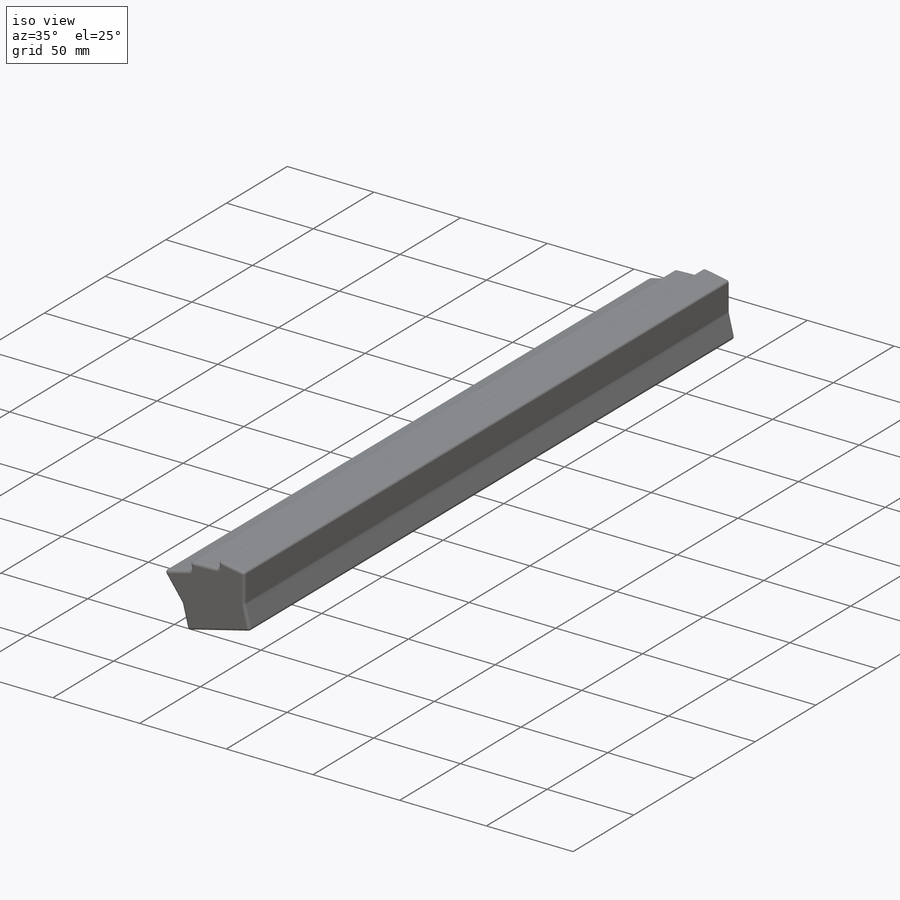
[diagram: iso view]
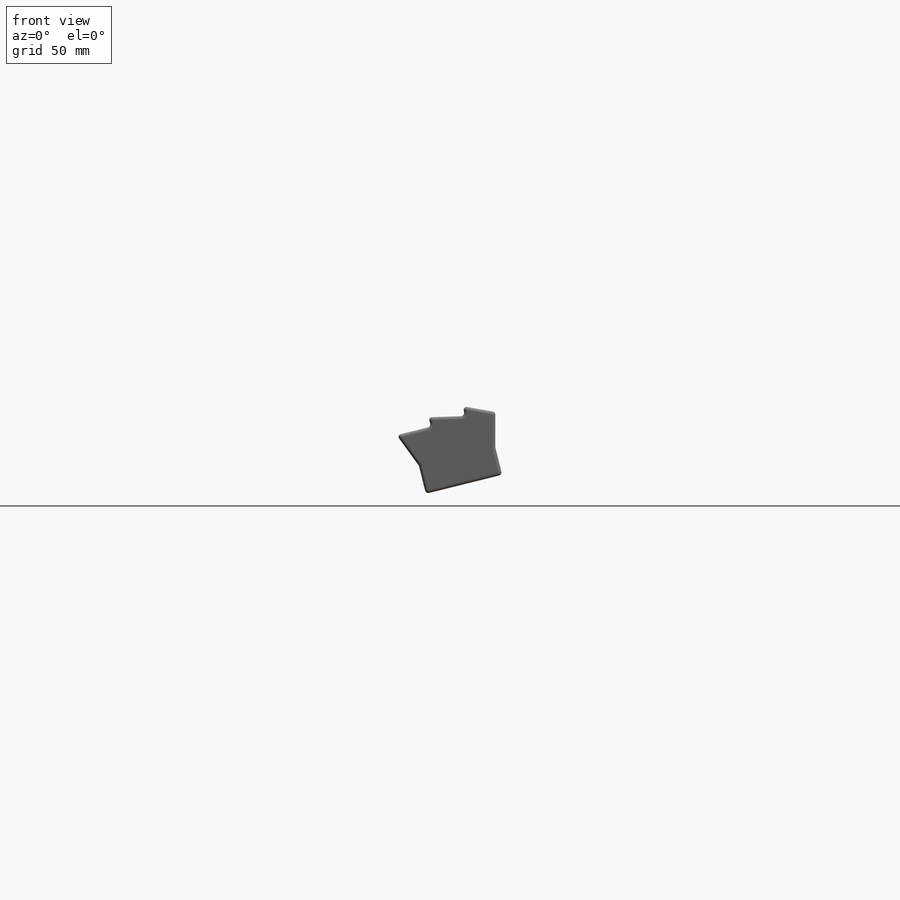
[diagram: front view]
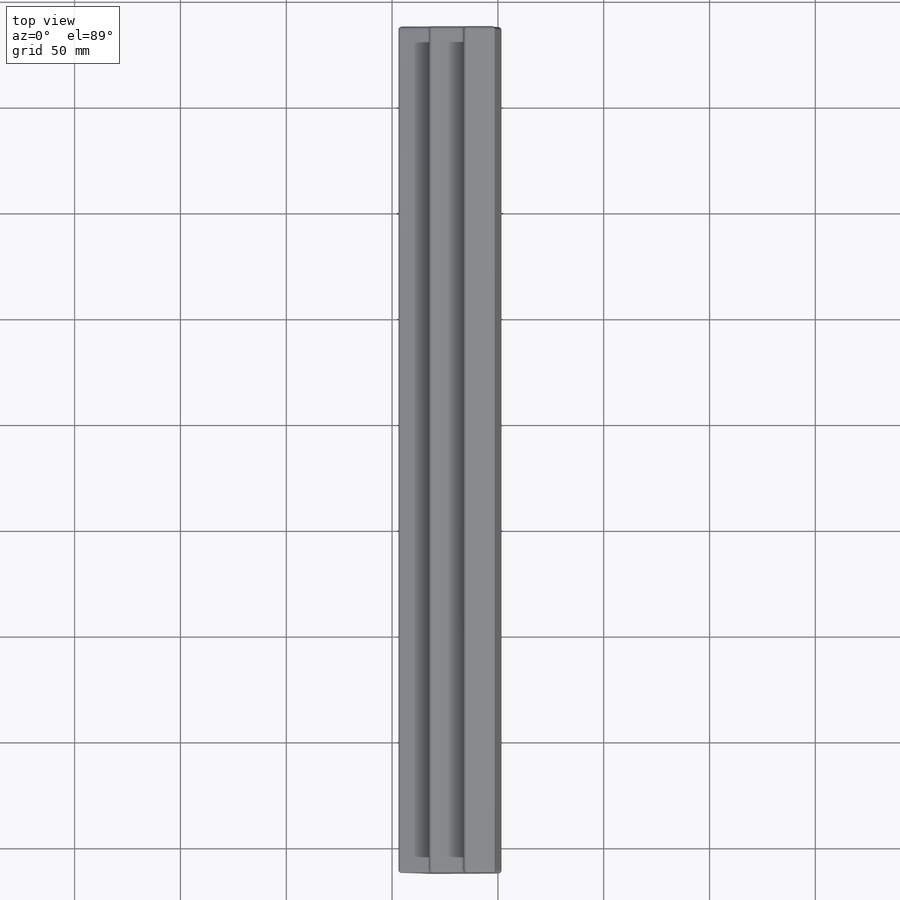
[diagram: top view]
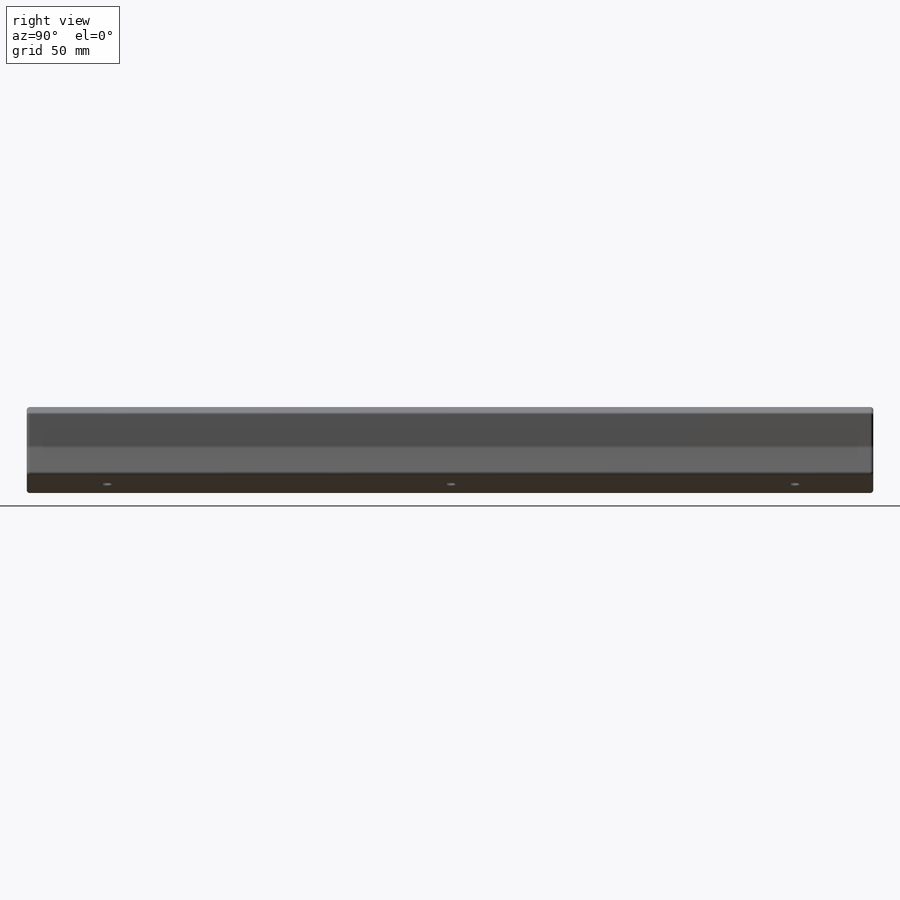
[diagram: right view]
SOLIDWORKS PART (.sldprt)
format: sldprt  version: not decoded by parser v0  size: 536,576 bytes
history: native  units: mm
features: sketch x8, cut_extrude x3, thread x3, extrude x2, plane x2, fillet x2, material x1, delete_body x1, hole x1 (+11 scaffold rows collapsed)
feature tree (34):
  scaffold x11  (default folders/planes/origin — collapsed)
  material  "ladder carbon corrected"
  sketch  "Sketch1"  dims[c1.D1=1.5mm c1.D2=1.5mm c1.D11=~155.350045mm c1.D3=2.0mm c1.D4=~14.974283mm c2.D4=1.0deg c2.D3=1.0mm c3.D4=~15.144895mm c4.D4=1.0deg c4.D3=0.8mm c5.D4=~15.270624mm c6.D4=0.0deg c6.D3=~2.92795mm c7.D4=~26.65953mm c7.D5=0.6466mm c7.D6=24.9mm c7.D7=0.5466mm c7.D8=~116.660292mm c8.D8=36.0deg c8.D5=~27.30613mm c8.D9=~42.457094mm c9.D9=~85.436553deg c9.D10=1.0mm c9.D12=~106.826477mm c10.D12=~11.554081deg c10.D13=~104.661755mm c11.D13=12.0deg c11.D14=~12.511609mm c12.D14=~79.963091deg c12.D15=~12.511609mm c13.D15=12.0deg c13.D16=~13.632868mm c14.D16=12.0deg c14.D1=~137.50025mm c14.D2=213.5mm c14.D5=0.27mm c14.D6=1.0mm c14.D7=5.0mm]
  sketch  "Sketch2"  dims[D2=0.125mm D1=0.125mm]
  extrude  "Boss-Extrude1"  Depth=75mm
  delete_body  "Body-Delete1"
  sketch  "Sketch3"  dims[D1=500.0mm D2=100.0mm]
  cut_extrude  "Cut-Extrude1"  [1 undecoded]
  plane  "Plane1"
  plane  "Plane2"  Offset=15mm
  sketch  "Sketch8"  dims[D1=0.0mm]
  cut_extrude  "Cut-Extrude3"  Depth=400mm
  sketch  "Sketch6"  dims[D1=152.4mm D2=508.0mm]
  extrude  "Boss-Extrude2"  [1 undecoded]
  sketch  "Sketch7"
  cut_extrude  "Cut-Extrude2"  Depth=20mm
  fillet  "Fillet1"  Radius=3mm
  fillet  "Fillet3"  Radius=1.5mm
  hole  "1/4-20 Tapped Hole2"  Diameter=5.1054mm Depth=16.51mm
  sketch  "Sketch10"  dims[D1=325.0mm]
  sketch  "Sketch11"  dims[hole-wizard template sketch: 50 standard entries collapsed; hole parameters above]
  thread  "Hole Thread5"  Diameter=12.7mm  [1 undecoded]
  thread  "Hole Thread6"  Diameter=12.7mm  [1 undecoded]
  thread  "Hole Thread7"  Diameter=12.7mm  [1 undecoded]
decode coverage: 16 of 20 modeling features carry decoded parameters
note: ~ marks probable driven/reference dimensions
note: 5 parameter values undecoded
note: suppression state not decoded; provenance and decode notes live in map.json
